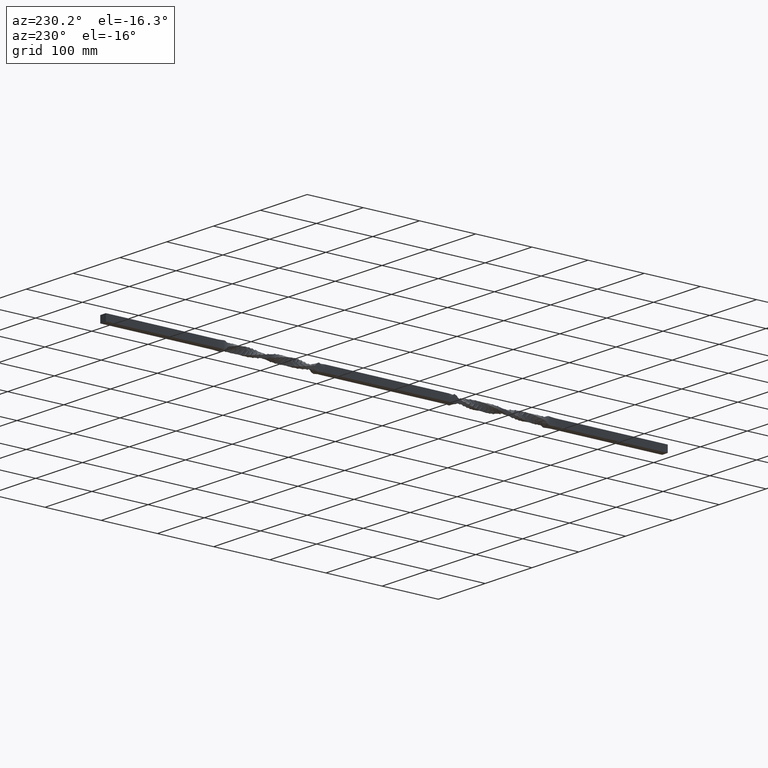
[diagram: clean part render]
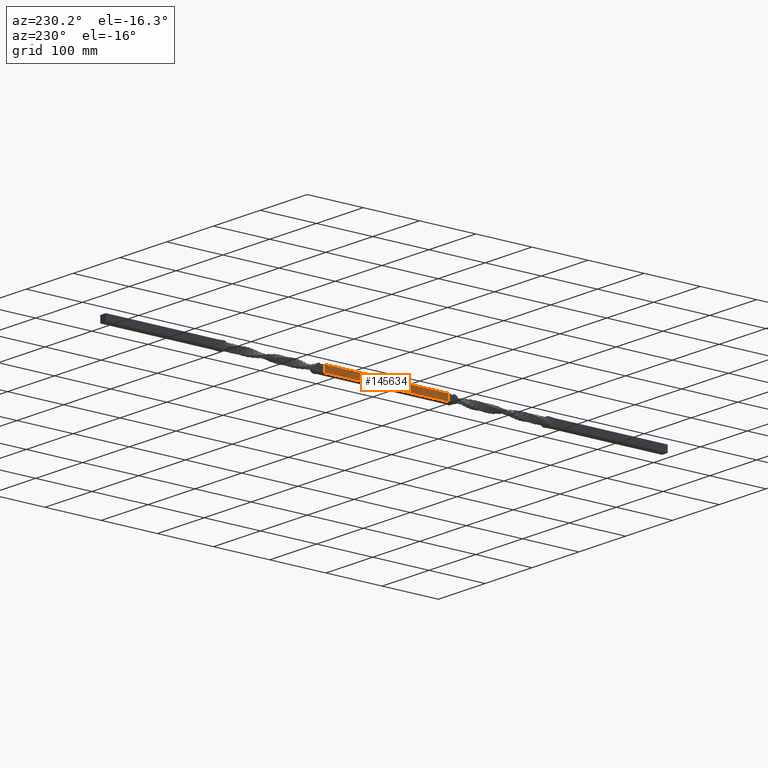
[diagram: same view with one face highlighted and labeled with its STEP entity id]
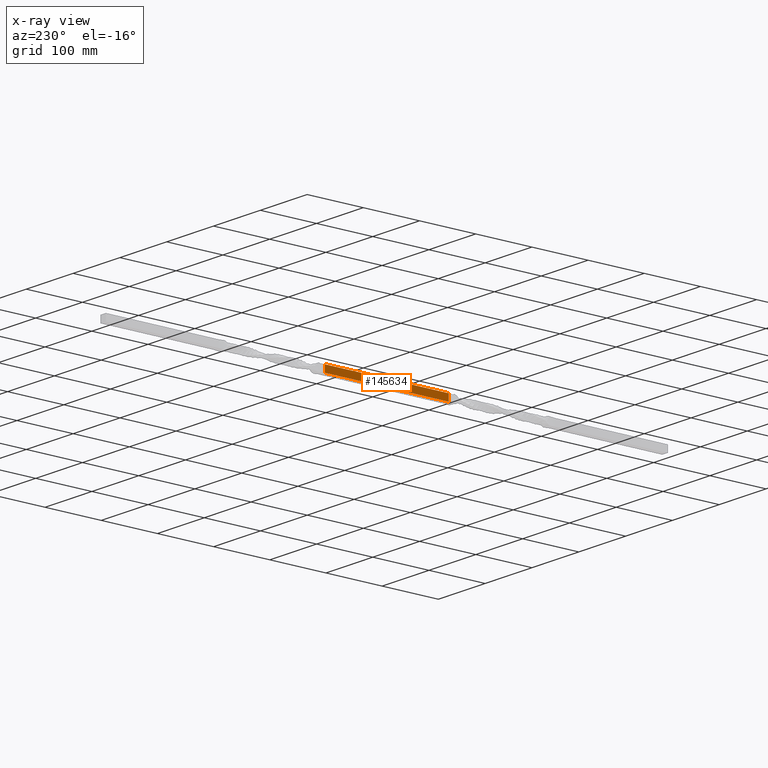
[diagram: x-ray of the same camera — body ghosted, the highlighted face saturated]
A machine part, auxiliary view. The second image highlights one B-rep face of the part: STEP entity #145634.
The next image is the same camera in x-ray: the body ghosted, the highlighted face saturated — about 0% of this face is hidden behind the body in this view.
In plain terms, the highlighted planar face has unit normal (1, -0, 0).
Its self-contained STEP definition (entity closure, byte-faithful):
#1807 = VERTEX_POINT ( 'NONE', #61179 ) ;
#2184 = DIRECTION ( 'NONE',  ( -0.000000000000000000, -0.000000000000000000, 1.000000000000000000 ) ) ;
#6578 = VERTEX_POINT ( 'NONE', #128815 ) ;
#6923 = LINE ( 'NONE', #136032, #87179 ) ;
#8149 = CARTESIAN_POINT ( 'NONE',  ( -5.999999999999988454, 170.0000000000000000, 6.000000000000008882 ) ) ;
#8841 = EDGE_CURVE ( 'NONE', #82105, #1807, #77993, .T. ) ;
#12906 = EDGE_CURVE ( 'NONE', #50401, #82105, #36659, .T. ) ;
#15189 = DIRECTION ( 'NONE',  ( 0.000000000000000000, 0.000000000000000000, -1.000000000000000000 ) ) ;
#18244 = VERTEX_POINT ( 'NONE', #148606 ) ;
#19080 = VECTOR ( 'NONE', #2184, 1000.000000000000000 ) ;
#20098 = VECTOR ( 'NONE', #122224, 1000.000000000000000 ) ;
#21074 = AXIS2_PLACEMENT_3D ( 'NONE', #116459, #66617, #15189 ) ;
#21449 = VERTEX_POINT ( 'NONE', #66711 ) ;
#25112 = VECTOR ( 'NONE', #158362, 1000.000000000000000 ) ;
#27805 = EDGE_CURVE ( 'NONE', #50776, #21449, #6923, .T. ) ;
#32448 = ORIENTED_EDGE ( 'NONE', *, *, #32553, .F. ) ;
#32553 = EDGE_CURVE ( 'NONE', #6578, #18244, #45975, .T. ) ;
#36659 = LINE ( 'NONE', #86540, #19080 ) ;
#39999 = CARTESIAN_POINT ( 'NONE',  ( -5.999999999999988454, 280.0000000000000000, -5.999999999999991118 ) ) ;
#44689 = VECTOR ( 'NONE', #84742, 1000.000000000000000 ) ;
#45975 = LINE ( 'NONE', #64609, #89082 ) ;
#47807 = EDGE_CURVE ( 'NONE', #18244, #154332, #76796, .T. ) ;
#49111 = EDGE_LOOP ( 'NONE', ( #106812, #94963, #136381, #86999, #32448, #110084, #131284, #153088 ) ) ;
#50401 = VERTEX_POINT ( 'NONE', #110711 ) ;
#50776 = VERTEX_POINT ( 'NONE', #85351 ) ;
#53389 = LINE ( 'NONE', #85559, #20098 ) ;
#56126 = LINE ( 'NONE', #39999, #81600 ) ;
#57714 = CARTESIAN_POINT ( 'NONE',  ( -5.999999999999988454, 170.0000000000000000, 6.000000000000008882 ) ) ;
#61179 = CARTESIAN_POINT ( 'NONE',  ( -5.999999999999988454, 170.0000000000000000, -0.6466862639041282002 ) ) ;
#63102 = VECTOR ( 'NONE', #145317, 1000.000000000000000 ) ;
#64609 = CARTESIAN_POINT ( 'NONE',  ( -5.999999999999988454, 390.0000000000000000, 6.000000000000008882 ) ) ;
#66617 = DIRECTION ( 'NONE',  ( 1.000000000000000000, -0.000000000000000000, 0.000000000000000000 ) ) ;
#66711 = CARTESIAN_POINT ( 'NONE',  ( -5.999999999999988454, 390.0000000000000000, -1.431049385586502964 ) ) ;
#66791 = DIRECTION ( 'NONE',  ( 0.000000000000000000, 0.000000000000000000, 1.000000000000000000 ) ) ;
#76796 = LINE ( 'NONE', #131143, #63102 ) ;
#77600 = PLANE ( 'NONE',  #21074 ) ;
#77993 = LINE ( 'NONE', #8149, #44689 ) ;
#81600 = VECTOR ( 'NONE', #141246, 1000.000000000000000 ) ;
#82105 = VERTEX_POINT ( 'NONE', #110113 ) ;
#84742 = DIRECTION ( 'NONE',  ( -0.000000000000000000, -0.000000000000000000, 1.000000000000000000 ) ) ;
#85351 = CARTESIAN_POINT ( 'NONE',  ( -5.999999999999988454, 390.0000000000000000, -5.999999999999991118 ) ) ;
#85559 = CARTESIAN_POINT ( 'NONE',  ( -5.999999999999988454, 390.0000000000000000, 6.000000000000008882 ) ) ;
#86540 = CARTESIAN_POINT ( 'NONE',  ( -5.999999999999988454, 170.0000000000000000, 6.000000000000008882 ) ) ;
#86999 = ORIENTED_EDGE ( 'NONE', *, *, #47807, .F. ) ;
#87179 = VECTOR ( 'NONE', #124017, 1000.000000000000000 ) ;
#89082 = VECTOR ( 'NONE', #66791, 1000.000000000000000 ) ;
#93656 = CARTESIAN_POINT ( 'NONE',  ( -5.999999999999988454, 170.0000000000000000, 6.000000000000008882 ) ) ;
#94963 = ORIENTED_EDGE ( 'NONE', *, *, #8841, .T. ) ;
#100019 = EDGE_CURVE ( 'NONE', #50776, #50401, #56126, .T. ) ;
#106812 = ORIENTED_EDGE ( 'NONE', *, *, #12906, .T. ) ;
#110084 = ORIENTED_EDGE ( 'NONE', *, *, #111706, .F. ) ;
#110113 = CARTESIAN_POINT ( 'NONE',  ( -5.999999999999988454, 170.0000000000000000, -1.431049385586502964 ) ) ;
#110711 = CARTESIAN_POINT ( 'NONE',  ( -5.999999999999988454, 170.0000000000000000, -5.999999999999991118 ) ) ;
#111706 = EDGE_CURVE ( 'NONE', #21449, #6578, #53389, .T. ) ;
#115169 = FACE_OUTER_BOUND ( 'NONE', #49111, .T. ) ;
#116459 = CARTESIAN_POINT ( 'NONE',  ( -5.999999999999988454, 280.0000000000000000, 5.999999999999991118 ) ) ;
#122224 = DIRECTION ( 'NONE',  ( 0.000000000000000000, 0.000000000000000000, 1.000000000000000000 ) ) ;
#124017 = DIRECTION ( 'NONE',  ( 0.000000000000000000, 0.000000000000000000, 1.000000000000000000 ) ) ;
#128815 = CARTESIAN_POINT ( 'NONE',  ( -5.999999999999988454, 390.0000000000000000, -0.6466862639041282002 ) ) ;
#131143 = CARTESIAN_POINT ( 'NONE',  ( -5.999999999999988454, 280.0000000000000000, 5.999999999999991118 ) ) ;
#131284 = ORIENTED_EDGE ( 'NONE', *, *, #27805, .F. ) ;
#136032 = CARTESIAN_POINT ( 'NONE',  ( -5.999999999999988454, 390.0000000000000000, 6.000000000000008882 ) ) ;
#136381 = ORIENTED_EDGE ( 'NONE', *, *, #137395, .T. ) ;
#137395 = EDGE_CURVE ( 'NONE', #1807, #154332, #138692, .T. ) ;
#138692 = LINE ( 'NONE', #57714, #25112 ) ;
#141246 = DIRECTION ( 'NONE',  ( -0.000000000000000000, -1.000000000000000000, -0.000000000000000000 ) ) ;
#145317 = DIRECTION ( 'NONE',  ( -0.000000000000000000, -1.000000000000000000, -0.000000000000000000 ) ) ;
#145634 = ADVANCED_FACE ( 'NONE', ( #115169 ), #77600, .F. ) ;
#148606 = CARTESIAN_POINT ( 'NONE',  ( -5.999999999999988454, 390.0000000000000000, 6.000000000000008882 ) ) ;
#153088 = ORIENTED_EDGE ( 'NONE', *, *, #100019, .T. ) ;
#154332 = VERTEX_POINT ( 'NONE', #93656 ) ;
#158362 = DIRECTION ( 'NONE',  ( -0.000000000000000000, -0.000000000000000000, 1.000000000000000000 ) ) ;